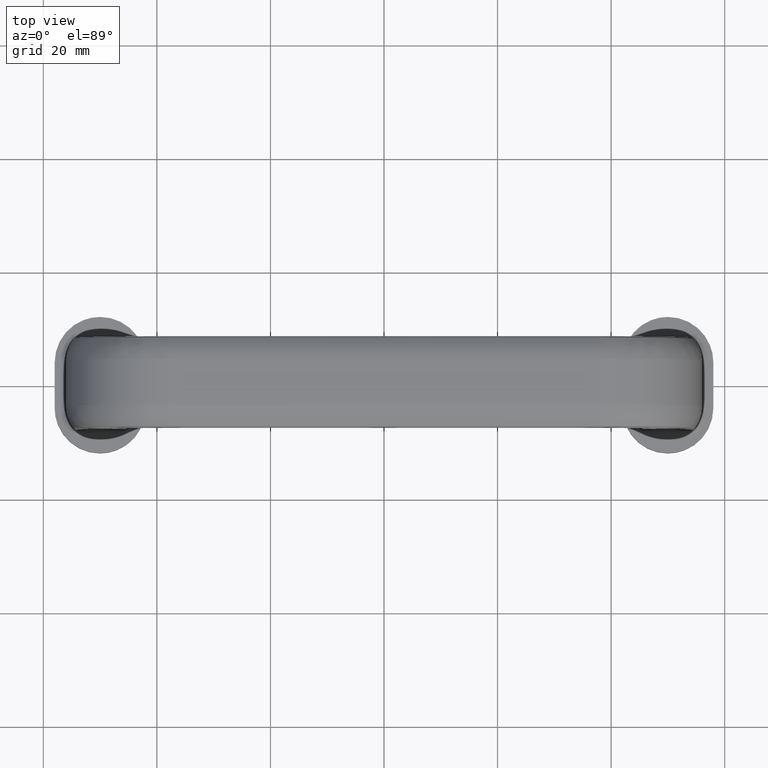
[diagram: clean part render]
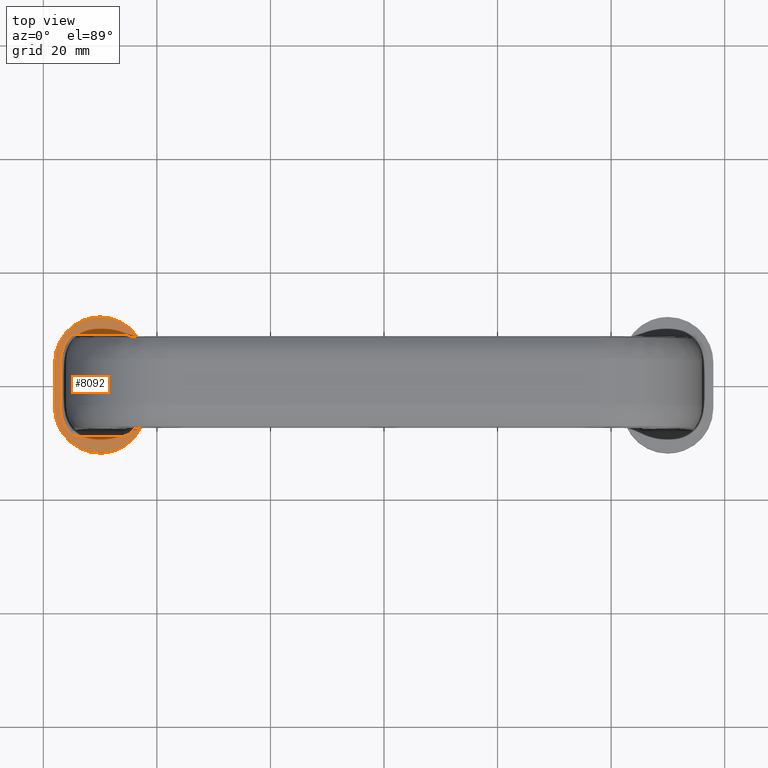
[diagram: same view with one face highlighted and labeled with its STEP entity id]
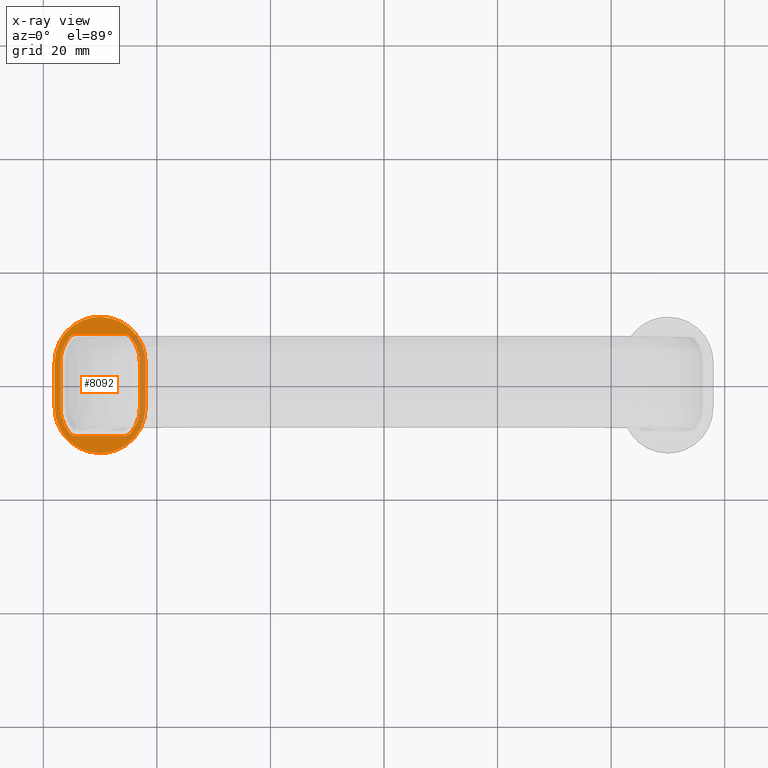
[diagram: x-ray of the same camera — body ghosted, the highlighted face saturated]
A machine part, top view. The second image highlights one B-rep face of the part: STEP entity #8092.
The next image is the same camera in x-ray: the body ghosted, the highlighted face saturated — about 18% of this face is hidden behind the body in this view.
In plain terms, the highlighted face is a freeform B-spline surface patch.
Its self-contained STEP definition (entity closure, byte-faithful):
#3532=CARTESIAN_POINT('',(-55.399724510879103,-8.454545454545539,14.600000000000000));
#3533=VERTEX_POINT('',#3532);
#3544=CARTESIAN_POINT('',(-54.242640687119298,-9.0,14.600000000000000));
#3545=VERTEX_POINT('',#3544);
#3546=CARTESIAN_POINT('',(-54.242640687119298,-9.0,14.600000000000000));
#3547=CARTESIAN_POINT('',(-54.366536612251373,-9.000030204291146,14.600000000000000));
#3548=CARTESIAN_POINT('',(-54.628076134834608,-8.967421573635694,14.600000000000010));
#3549=CARTESIAN_POINT('',(-55.040166963738528,-8.800284662130355,14.600000000000041));
#3550=CARTESIAN_POINT('',(-55.285937689456823,-8.592693639902638,14.599999999999950));
#3551=CARTESIAN_POINT('',(-55.399724510879103,-8.454545454545539,14.600000000000000));
#3552=B_SPLINE_CURVE_WITH_KNOTS('',3,(#3546,#3547,#3548,#3549,#3550,#3551),.UNSPECIFIED.,.F.,.U.,(4,1,1,4),(0.000000089503338,0.371694755664363,0.784671583699395,1.321573715304519),.UNSPECIFIED.);
#3553=EDGE_CURVE('',#3545,#3533,#3552,.T.);
#3593=CARTESIAN_POINT('',(-45.757359312880702,-9.0,14.600000000000000));
#3594=VERTEX_POINT('',#3593);
#3614=CARTESIAN_POINT('',(-45.757359312880702,-9.0,14.600000000000000));
#3615=CARTESIAN_POINT('',(-54.242640687119298,-9.0,14.600000000000000));
#3616=QUASI_UNIFORM_CURVE('',1,(#3614,#3615),.UNSPECIFIED.,.F.,.U.);
#3617=EDGE_CURVE('',#3594,#3545,#3616,.T.);
#3641=CARTESIAN_POINT('',(-57.0,-4.000000000000085,14.600000000000000));
#3642=VERTEX_POINT('',#3641);
#3654=CARTESIAN_POINT('',(-55.399724510879103,-8.454545454545539,14.600000000000000));
#3655=CARTESIAN_POINT('',(-55.671796549258360,-8.124777988864915,14.600000000000000));
#3656=CARTESIAN_POINT('',(-56.226459980104352,-7.310910158808187,14.600000000000030));
#3657=CARTESIAN_POINT('',(-56.839708315335827,-5.810578065462306,14.599999999999950));
#3658=CARTESIAN_POINT('',(-57.000186736306212,-4.628724567734083,14.600000000000049));
#3659=CARTESIAN_POINT('',(-57.0,-4.000000000000085,14.600000000000000));
#3660=B_SPLINE_CURVE_WITH_KNOTS('',3,(#3654,#3655,#3656,#3657,#3658,#3659),.UNSPECIFIED.,.F.,.U.,(4,1,1,4),(0.000000025754814,1.282557771321499,2.942323914387604,4.828448373960975),.UNSPECIFIED.);
#3661=EDGE_CURVE('',#3533,#3642,#3660,.T.);
#3693=CARTESIAN_POINT('',(-44.600275489120897,-8.454545454545539,14.600000000000000));
#3694=VERTEX_POINT('',#3693);
#3717=CARTESIAN_POINT('',(-44.600275489120897,-8.454545454545539,14.600000000000000));
#3718=CARTESIAN_POINT('',(-44.679098681493713,-8.550132550569979,14.600000000000000));
#3719=CARTESIAN_POINT('',(-44.880749840355357,-8.740696450765315,14.599999999999991));
#3720=CARTESIAN_POINT('',(-45.275595122715423,-8.947174620116632,14.600000000000019));
#3721=CARTESIAN_POINT('',(-45.592156681567729,-9.000099376181597,14.600000000000010));
#3722=CARTESIAN_POINT('',(-45.757359312880702,-9.0,14.600000000000000));
#3723=B_SPLINE_CURVE_WITH_KNOTS('',3,(#3717,#3718,#3719,#3720,#3721,#3722),.UNSPECIFIED.,.F.,.U.,(4,1,1,4),(0.000000089505745,0.371694755666054,0.825983100355978,1.321573715304498),.UNSPECIFIED.);
#3724=EDGE_CURVE('',#3694,#3594,#3723,.T.);
#3745=CARTESIAN_POINT('',(-57.0,4.0,14.600000000000000));
#3746=VERTEX_POINT('',#3745);
#3758=CARTESIAN_POINT('',(-57.0,-4.000000000000085,14.600000000000000));
#3759=CARTESIAN_POINT('',(-57.0,4.0,14.600000000000000));
#3760=QUASI_UNIFORM_CURVE('',1,(#3758,#3759),.UNSPECIFIED.,.F.,.U.);
#3761=EDGE_CURVE('',#3642,#3746,#3760,.T.);
#3789=CARTESIAN_POINT('',(-43.0,-4.000000000000085,14.600000000000000));
#3790=VERTEX_POINT('',#3789);
#3814=CARTESIAN_POINT('',(-43.0,-4.000000000000085,14.600000000000000));
#3815=CARTESIAN_POINT('',(-42.999471286134288,-4.779668636901198,14.600000000000010));
#3816=CARTESIAN_POINT('',(-43.216588270004479,-6.061863755134988,14.600000000000049));
#3817=CARTESIAN_POINT('',(-43.909007943211449,-7.525171762655814,14.599999999999950));
#3818=CARTESIAN_POINT('',(-44.392234767721718,-8.202361279232111,14.600000000000010));
#3819=CARTESIAN_POINT('',(-44.600275489120897,-8.454545454545539,14.600000000000000));
#3820=B_SPLINE_CURVE_WITH_KNOTS('',3,(#3814,#3815,#3816,#3817,#3818,#3819),.UNSPECIFIED.,.F.,.U.,(4,1,1,4),(0.000000025753517,2.338799420130127,3.847671470272354,4.828448373961015),.UNSPECIFIED.);
#3821=EDGE_CURVE('',#3790,#3694,#3820,.T.);
#3845=CARTESIAN_POINT('',(-55.399724510879103,8.454545454545452,14.600000000000000));
#3846=VERTEX_POINT('',#3845);
#3857=CARTESIAN_POINT('',(-57.0,4.0,14.600000000000000));
#3858=CARTESIAN_POINT('',(-57.000066213378616,4.477818915663350,14.599999999999991));
#3859=CARTESIAN_POINT('',(-56.919856020707321,5.257384569347864,14.600000000000010));
#3860=CARTESIAN_POINT('',(-56.604560507600631,6.399087340599362,14.599999999999969));
#3861=CARTESIAN_POINT('',(-56.141054155230421,7.436083143851419,14.600000000000080));
#3862=CARTESIAN_POINT('',(-55.671817533120318,8.124789583683215,14.599999999999900));
#3863=CARTESIAN_POINT('',(-55.399724510879103,8.454545454545452,14.600000000000000));
#3864=B_SPLINE_CURVE_WITH_KNOTS('',3,(#3857,#3858,#3859,#3860,#3861,#3862,#3863),.UNSPECIFIED.,.F.,.U.,(4,1,1,1,4),(0.000000025752778,1.433447296168600,2.338799420130464,3.545890628393620,4.828448373960979),.UNSPECIFIED.);
#3865=EDGE_CURVE('',#3746,#3846,#3864,.T.);
#3894=CARTESIAN_POINT('',(-43.0,4.0,14.600000000000000));
#3895=VERTEX_POINT('',#3894);
#3915=CARTESIAN_POINT('',(-43.0,4.0,14.600000000000000));
#3916=CARTESIAN_POINT('',(-43.0,-4.000000000000085,14.600000000000000));
#3917=QUASI_UNIFORM_CURVE('',1,(#3915,#3916),.UNSPECIFIED.,.F.,.U.);
#3918=EDGE_CURVE('',#3895,#3790,#3917,.T.);
#3942=CARTESIAN_POINT('',(-54.242640687119298,9.0,14.600000000000000));
#3943=VERTEX_POINT('',#3942);
#3955=CARTESIAN_POINT('',(-55.399724510879103,8.454545454545452,14.600000000000000));
#3956=CARTESIAN_POINT('',(-55.268484663108843,8.614013140463845,14.600000000000010));
#3957=CARTESIAN_POINT('',(-54.916800770994442,8.894691361506318,14.600000000000019));
#3958=CARTESIAN_POINT('',(-54.476723227596104,9.000382836401155,14.599999999999961));
#3959=CARTESIAN_POINT('',(-54.242640687119298,9.0,14.600000000000000));
#3960=B_SPLINE_CURVE_WITH_KNOTS('',3,(#3955,#3956,#3957,#3958,#3959),.UNSPECIFIED.,.F.,.U.,(4,1,4),(0.000000089506467,0.619506209901500,1.321573715304516),.UNSPECIFIED.);
#3961=EDGE_CURVE('',#3846,#3943,#3960,.T.);
#3992=CARTESIAN_POINT('',(-44.600275489120897,8.454545454545452,14.600000000000000));
#3993=VERTEX_POINT('',#3992);
#4017=CARTESIAN_POINT('',(-44.600275489120897,8.454545454545452,14.600000000000000));
#4018=CARTESIAN_POINT('',(-44.216053978351681,7.989064992575696,14.600000000000019));
#4019=CARTESIAN_POINT('',(-43.690596935389337,7.151239065298483,14.599999999999961));
#4020=CARTESIAN_POINT('',(-43.136515754200168,5.634511148112357,14.600000000000049));
#4021=CARTESIAN_POINT('',(-42.999765671197288,4.628737025436102,14.599999999999961));
#4022=CARTESIAN_POINT('',(-43.0,4.0,14.600000000000000));
#4023=B_SPLINE_CURVE_WITH_KNOTS('',3,(#4017,#4018,#4019,#4020,#4021,#4022),.UNSPECIFIED.,.F.,.U.,(4,1,1,4),(0.000000025750690,1.810668571362541,2.942323914386618,4.828448373961018),.UNSPECIFIED.);
#4024=EDGE_CURVE('',#3993,#3895,#4023,.T.);
#4045=CARTESIAN_POINT('',(-45.757359312880702,9.0,14.600000000000000));
#4046=VERTEX_POINT('',#4045);
#4057=CARTESIAN_POINT('',(-54.242640687119298,9.0,14.600000000000000));
#4058=CARTESIAN_POINT('',(-45.757359312880702,9.0,14.600000000000000));
#4059=QUASI_UNIFORM_CURVE('',1,(#4057,#4058),.UNSPECIFIED.,.F.,.U.);
#4060=EDGE_CURVE('',#3943,#4046,#4059,.T.);
#4089=CARTESIAN_POINT('',(-45.757359312880702,9.0,14.600000000000000));
#4090=CARTESIAN_POINT('',(-45.523278446153718,9.000421506986402,14.600000000000030));
#4091=CARTESIAN_POINT('',(-45.083178918500522,8.894675711154594,14.599999999999950));
#4092=CARTESIAN_POINT('',(-44.731539994229102,8.613991812514865,14.600000000000071));
#4093=CARTESIAN_POINT('',(-44.600275489120897,8.454545454545452,14.600000000000000));
#4094=B_SPLINE_CURVE_WITH_KNOTS('',3,(#4089,#4090,#4091,#4092,#4093),.UNSPECIFIED.,.F.,.U.,(4,1,4),(0.000000089505709,0.702067594908178,1.321573715304506),.UNSPECIFIED.);
#4095=EDGE_CURVE('',#4046,#3993,#4094,.T.);
#7993=CARTESIAN_POINT('',(-58.799199968988901,13.198799953483260,14.600000000000000));
#7994=CARTESIAN_POINT('',(-41.200799601857653,13.198799953483260,14.600000000000000));
#7995=CARTESIAN_POINT('',(-58.799199968988901,-13.198800597213420,14.600000000000000));
#7996=CARTESIAN_POINT('',(-41.200799601857653,-13.198800597213420,14.600000000000000));
#7997=B_SPLINE_SURFACE_WITH_KNOTS('',1,1,((#7993,#7995),(#7994,#7996)),.UNSPECIFIED.,.F.,.F.,.U.,(2,2),(2,2),(0.0,17.598400367131251),(0.0,26.397600550696691),.UNSPECIFIED.);
#7998=CARTESIAN_POINT('',(-50.000001087505332,-11.999999999999931,14.600000000000000));
#7999=VERTEX_POINT('',#7998);
#8000=CARTESIAN_POINT('',(-58.0,-4.0,14.600000000000000));
#8001=VERTEX_POINT('',#8000);
#8002=CARTESIAN_POINT('',(-50.000001087505332,-11.999999999999931,14.600000000000000));
#8003=CARTESIAN_POINT('',(-50.785435030288987,-12.000333436088679,14.600000000000030));
#8004=CARTESIAN_POINT('',(-52.094238688124818,-11.805640071457550,14.599999999999950));
#8005=CARTESIAN_POINT('',(-53.643571307724713,-11.163732294393590,14.600000000000060));
#8006=CARTESIAN_POINT('',(-54.784096435619567,-10.451258774598450,14.599999999999969));
#8007=CARTESIAN_POINT('',(-55.828727062100633,-9.550243415705099,14.600000000000060));
#8008=CARTESIAN_POINT('',(-56.665188683743672,-8.491855591283564,14.599999999999920));
#8009=CARTESIAN_POINT('',(-57.376638801227507,-7.199276841686621,14.600000000000071));
#8010=CARTESIAN_POINT('',(-57.869320463881493,-5.767119423717593,14.599999999999950));
#8011=CARTESIAN_POINT('',(-58.000098096631348,-4.589051672709139,14.600000000000120));
#8012=CARTESIAN_POINT('',(-58.0,-4.0,14.600000000000000));
#8013=B_SPLINE_CURVE_WITH_KNOTS('',3,(#8002,#8003,#8004,#8005,#8006,#8007,#8008,#8009,#8010,#8011,#8012),.UNSPECIFIED.,.F.,.U.,(4,1,1,1,1,1,1,1,4),(0.000000102742900,2.356208194101924,3.927021020569992,5.006959099407153,6.381365976186993,8.050360449565275,9.032135338563279,10.799300577182651,12.566448850065150),.UNSPECIFIED.);
#8014=EDGE_CURVE('',#7999,#8001,#8013,.T.);
#8015=ORIENTED_EDGE('',*,*,#8014,.F.);
#8016=CARTESIAN_POINT('',(-42.0,-4.0,14.600000000000000));
#8017=VERTEX_POINT('',#8016);
#8018=CARTESIAN_POINT('',(-42.0,-4.0,14.600000000000000));
#8019=CARTESIAN_POINT('',(-41.999970587994810,-4.458140503993866,14.600000000000019));
#8020=CARTESIAN_POINT('',(-42.078924517212648,-5.374423712104403,14.599999999999980));
#8021=CARTESIAN_POINT('',(-42.463905855861093,-6.835489848362812,14.600000000000041));
#8022=CARTESIAN_POINT('',(-43.099375535040203,-8.137377591351269,14.599999999999930));
#8023=CARTESIAN_POINT('',(-44.076701102847260,-9.455266240246427,14.600000000000041));
#8024=CARTESIAN_POINT('',(-45.200485663428012,-10.473759289015771,14.599999999999991));
#8025=CARTESIAN_POINT('',(-46.676176700577109,-11.333803803065640,14.600000000000090));
#8026=CARTESIAN_POINT('',(-48.232886404507973,-11.869319972766050,14.599999999999961));
#8027=CARTESIAN_POINT('',(-49.410948739466782,-12.000097896084540,14.600000000000010));
#8028=CARTESIAN_POINT('',(-50.000001087505332,-11.999999999999931,14.600000000000000));
#8029=B_SPLINE_CURVE_WITH_KNOTS('',3,(#8018,#8019,#8020,#8021,#8022,#8023,#8024,#8025,#8026,#8027,#8028),.UNSPECIFIED.,.F.,.U.,(4,1,1,1,1,1,1,1,4),(0.000000102351812,1.374426455376627,2.748911632378633,4.516091310831343,5.694214840955159,7.657653704217902,9.032136219827144,10.799301631108200,12.566450075944910),.UNSPECIFIED.);
#8030=EDGE_CURVE('',#8017,#7999,#8029,.T.);
#8031=ORIENTED_EDGE('',*,*,#8030,.F.);
#8032=CARTESIAN_POINT('',(-42.0,4.0,14.600000000000000));
#8033=VERTEX_POINT('',#8032);
#8034=CARTESIAN_POINT('',(-42.0,4.0,14.600000000000000));
#8035=CARTESIAN_POINT('',(-42.0,-4.0,14.600000000000000));
#8036=QUASI_UNIFORM_CURVE('',1,(#8034,#8035),.UNSPECIFIED.,.F.,.U.);
#8037=EDGE_CURVE('',#8033,#8017,#8036,.T.);
#8038=ORIENTED_EDGE('',*,*,#8037,.F.);
#8039=CARTESIAN_POINT('',(-49.999998912494661,11.999999999999931,14.600000000000000));
#8040=VERTEX_POINT('',#8039);
#8041=CARTESIAN_POINT('',(-49.999998912494661,11.999999999999931,14.600000000000000));
#8042=CARTESIAN_POINT('',(-49.149067312125929,12.000528848213280,14.600000000000000));
#8043=CARTESIAN_POINT('',(-47.971312320912958,11.810208897478480,14.599999999999991));
#8044=CARTESIAN_POINT('',(-46.327384004589199,11.152730590524200,14.600000000000019));
#8045=CARTESIAN_POINT('',(-44.981838989672049,10.323802712388900,14.600000000000000));
#8046=CARTESIAN_POINT('',(-43.769494387729161,9.111396828037163,14.599999999999991));
#8047=CARTESIAN_POINT('',(-42.999430910286890,7.927426413351832,14.600000000000000));
#8048=CARTESIAN_POINT('',(-42.446120462397658,6.738890017760095,14.600000000000110));
#8049=CARTESIAN_POINT('',(-42.087321398044132,5.472629794584607,14.599999999999669));
#8050=CARTESIAN_POINT('',(-41.999980500612722,4.458145895628145,14.600000000000270));
#8051=CARTESIAN_POINT('',(-42.0,4.0,14.600000000000000));
#8052=B_SPLINE_CURVE_WITH_KNOTS('',3,(#8041,#8042,#8043,#8044,#8045,#8046,#8047,#8048,#8049,#8050,#8051),.UNSPECIFIED.,.F.,.U.,(4,1,1,1,1,1,1,1,4),(0.000000102724696,2.552550442827933,3.534316326769162,5.301506040203244,7.264945272844187,8.639431876060064,9.523014028385237,11.191994718083810,12.566448850065340),.UNSPECIFIED.);
#8053=EDGE_CURVE('',#8040,#8033,#8052,.T.);
#8054=ORIENTED_EDGE('',*,*,#8053,.F.);
#8055=CARTESIAN_POINT('',(-58.0,4.0,14.600000000000000));
#8056=VERTEX_POINT('',#8055);
#8057=CARTESIAN_POINT('',(-58.0,4.0,14.600000000000000));
#8058=CARTESIAN_POINT('',(-58.000059147248393,4.523601246295259,14.600000000000010));
#8059=CARTESIAN_POINT('',(-57.903275161014783,5.505322225895249,14.600000000000030));
#8060=CARTESIAN_POINT('',(-57.519026827656667,6.830254169228334,14.599999999999939));
#8061=CARTESIAN_POINT('',(-56.859758059102433,8.224557196182287,14.600000000000041));
#8062=CARTESIAN_POINT('',(-55.948093606734268,9.438058082236733,14.600000000000041));
#8063=CARTESIAN_POINT('',(-54.588093546417902,10.625865363057040,14.599999999999920));
#8064=CARTESIAN_POINT('',(-53.176473631959439,11.414187736849140,14.600000000000041));
#8065=CARTESIAN_POINT('',(-51.538028813895032,11.900026635099410,14.600000000000000));
#8066=CARTESIAN_POINT('',(-50.523593600004212,12.000066921608880,14.599999999999991));
#8067=CARTESIAN_POINT('',(-49.999998912494661,11.999999999999931,14.600000000000000));
#8068=B_SPLINE_CURVE_WITH_KNOTS('',3,(#8057,#8058,#8059,#8060,#8061,#8062,#8063,#8064,#8065,#8066,#8067),.UNSPECIFIED.,.F.,.U.,(4,1,1,1,1,1,1,1,4),(0.000000102351583,1.570800185180506,2.945259180758480,4.123383774799059,6.185086150546311,7.461317578233589,9.523014957407149,10.995669553874061,12.566450075944919),.UNSPECIFIED.);
#8069=EDGE_CURVE('',#8056,#8040,#8068,.T.);
#8070=ORIENTED_EDGE('',*,*,#8069,.F.);
#8071=CARTESIAN_POINT('',(-58.0,-4.0,14.600000000000000));
#8072=CARTESIAN_POINT('',(-58.0,4.0,14.600000000000000));
#8073=QUASI_UNIFORM_CURVE('',1,(#8071,#8072),.UNSPECIFIED.,.F.,.U.);
#8074=EDGE_CURVE('',#8001,#8056,#8073,.T.);
#8075=ORIENTED_EDGE('',*,*,#8074,.F.);
#8076=EDGE_LOOP('',(#8015,#8031,#8038,#8054,#8070,#8075));
#8077=FACE_OUTER_BOUND('',#8076,.T.);
#8078=ORIENTED_EDGE('',*,*,#3617,.T.);
#8079=ORIENTED_EDGE('',*,*,#3553,.T.);
#8080=ORIENTED_EDGE('',*,*,#3661,.T.);
#8081=ORIENTED_EDGE('',*,*,#3761,.T.);
#8082=ORIENTED_EDGE('',*,*,#3865,.T.);
#8083=ORIENTED_EDGE('',*,*,#3961,.T.);
#8084=ORIENTED_EDGE('',*,*,#4060,.T.);
#8085=ORIENTED_EDGE('',*,*,#4095,.T.);
#8086=ORIENTED_EDGE('',*,*,#4024,.T.);
#8087=ORIENTED_EDGE('',*,*,#3918,.T.);
#8088=ORIENTED_EDGE('',*,*,#3821,.T.);
#8089=ORIENTED_EDGE('',*,*,#3724,.T.);
#8090=EDGE_LOOP('',(#8078,#8079,#8080,#8081,#8082,#8083,#8084,#8085,#8086,#8087,#8088,#8089));
#8091=FACE_BOUND('',#8090,.T.);
#8092=ADVANCED_FACE('',(#8077,#8091),#7997,.F.);